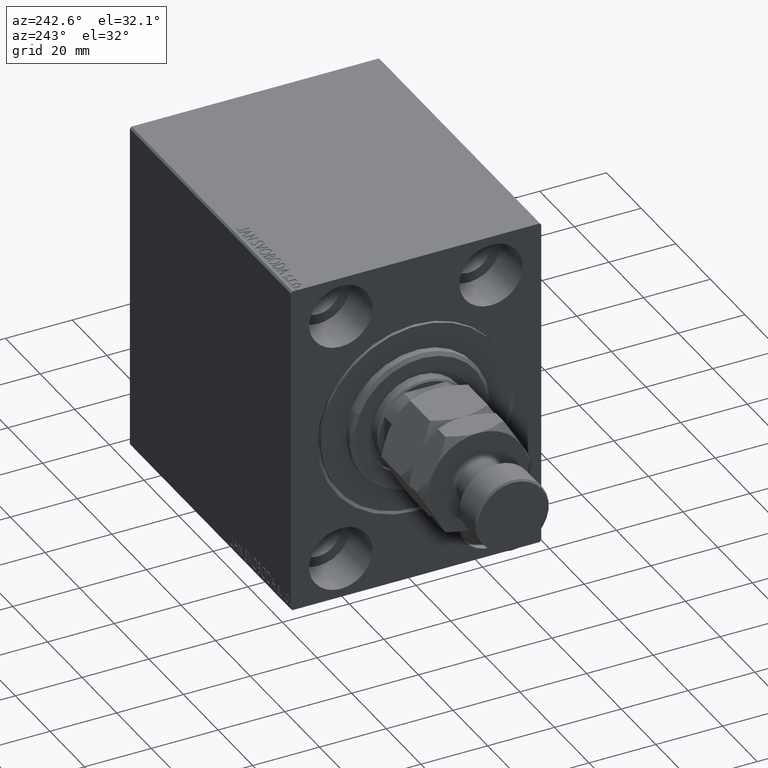
[diagram: clean part render]
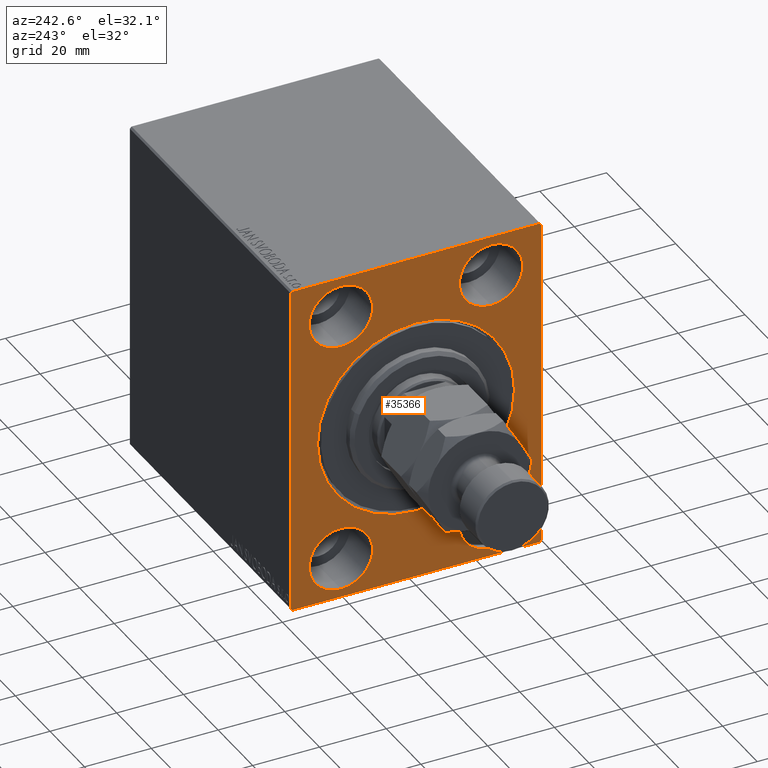
[diagram: same view with one face highlighted and labeled with its STEP entity id]
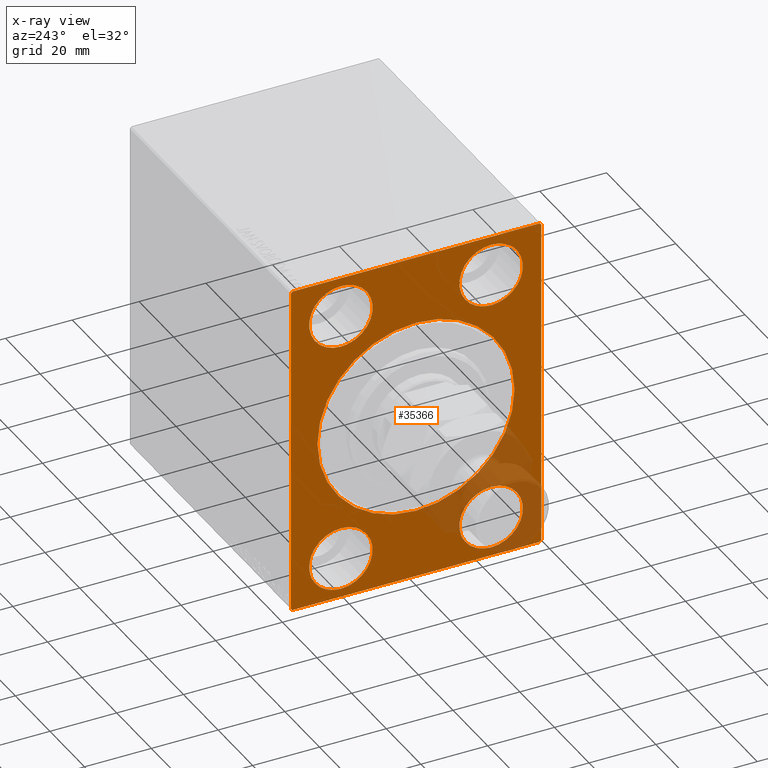
[diagram: x-ray of the same camera — body ghosted, the highlighted face saturated]
A machine part, auxiliary view. The second image highlights one B-rep face of the part: STEP entity #35366.
The next image is the same camera in x-ray: the body ghosted, the highlighted face saturated — about 13% of this face is hidden behind the body in this view.
In plain terms, the highlighted planar face has unit normal (1, 0, 0).
Its self-contained STEP definition (entity closure, byte-faithful):
#129 = ORIENTED_EDGE ( 'NONE', *, *, #8971, .F. ) ;
#409 = EDGE_CURVE ( 'NONE', #41320, #17783, #13076, .T. ) ;
#693 = VERTEX_POINT ( 'NONE', #3735 ) ;
#726 = EDGE_LOOP ( 'NONE', ( #42060, #11375 ) ) ;
#1020 = EDGE_CURVE ( 'NONE', #8788, #36381, #22157, .T. ) ;
#1078 = EDGE_CURVE ( 'NONE', #38572, #693, #28415, .T. ) ;
#1482 = CARTESIAN_POINT ( 'NONE',  ( 0.000000000000000000, -22.49999999999999645, 37.99999999999999289 ) ) ;
#1714 = DIRECTION ( 'NONE',  ( -1.000000000000000000, 0.000000000000000000, 0.000000000000000000 ) ) ;
#1757 = AXIS2_PLACEMENT_3D ( 'NONE', #5021, #19552, #19105 ) ;
#2469 = EDGE_LOOP ( 'NONE', ( #9022, #35100 ) ) ;
#3502 = CARTESIAN_POINT ( 'NONE',  ( 0.000000000000000000, 3.612708057484695548E-15, -29.50000000000002842 ) ) ;
#3686 = VECTOR ( 'NONE', #7411, 1000.000000000000000 ) ;
#3735 = CARTESIAN_POINT ( 'NONE',  ( 0.000000000000000000, 37.00000000000002132, -50.00000000000000000 ) ) ;
#3846 = FACE_BOUND ( 'NONE', #11042, .T. ) ;
#3963 = CIRCLE ( 'NONE', #38662, 9.500000000000001776 ) ;
#4396 = CARTESIAN_POINT ( 'NONE',  ( 0.000000000000000000, 0.000000000000000000, 0.000000000000000000 ) ) ;
#4739 = CARTESIAN_POINT ( 'NONE',  ( 0.000000000000000000, 22.50000000000000355, 47.49999999999999289 ) ) ;
#4958 = DIRECTION ( 'NONE',  ( 0.000000000000000000, 0.000000000000000000, -1.000000000000000000 ) ) ;
#5021 = CARTESIAN_POINT ( 'NONE',  ( 0.000000000000000000, 22.50000000000000355, 37.99999999999999289 ) ) ;
#5477 = DIRECTION ( 'NONE',  ( 0.000000000000000000, 0.000000000000000000, 1.000000000000000000 ) ) ;
#5615 = DIRECTION ( 'NONE',  ( 0.000000000000000000, 0.000000000000000000, 1.000000000000000000 ) ) ;
#5651 = EDGE_CURVE ( 'NONE', #17783, #41320, #28010, .T. ) ;
#6091 = VERTEX_POINT ( 'NONE', #6981 ) ;
#6981 = CARTESIAN_POINT ( 'NONE',  ( 0.000000000000000000, -22.49999999999999645, 28.49999999999998934 ) ) ;
#7021 = CIRCLE ( 'NONE', #13677, 9.500000000000001776 ) ;
#7411 = DIRECTION ( 'NONE',  ( 0.000000000000000000, 1.000000000000000000, 9.251858538542970348E-17 ) ) ;
#7971 = ORIENTED_EDGE ( 'NONE', *, *, #37363, .F. ) ;
#8350 = ORIENTED_EDGE ( 'NONE', *, *, #41703, .T. ) ;
#8408 = AXIS2_PLACEMENT_3D ( 'NONE', #18587, #12105, #4958 ) ;
#8788 = VERTEX_POINT ( 'NONE', #43292 ) ;
#8971 = EDGE_CURVE ( 'NONE', #34063, #693, #43018, .T. ) ;
#9022 = ORIENTED_EDGE ( 'NONE', *, *, #29511, .T. ) ;
#9504 = CARTESIAN_POINT ( 'NONE',  ( 0.000000000000000000, 22.50000000000000355, 37.99999999999999289 ) ) ;
#9813 = DIRECTION ( 'NONE',  ( 0.000000000000000000, 0.000000000000000000, 1.000000000000000000 ) ) ;
#9909 = ORIENTED_EDGE ( 'NONE', *, *, #12942, .F. ) ;
#10250 = VECTOR ( 'NONE', #33769, 1000.000000000000000 ) ;
#10650 = VECTOR ( 'NONE', #41772, 999.9999999999998863 ) ;
#10757 = LINE ( 'NONE', #24877, #37407 ) ;
#10993 = CARTESIAN_POINT ( 'NONE',  ( 0.000000000000000000, 0.000000000000000000, 0.000000000000000000 ) ) ;
#11042 = EDGE_LOOP ( 'NONE', ( #7971, #18069 ) ) ;
#11212 = ORIENTED_EDGE ( 'NONE', *, *, #27428, .F. ) ;
#11375 = ORIENTED_EDGE ( 'NONE', *, *, #5651, .F. ) ;
#11677 = DIRECTION ( 'NONE',  ( 0.000000000000000000, 0.000000000000000000, -1.000000000000000000 ) ) ;
#11692 = CARTESIAN_POINT ( 'NONE',  ( 0.000000000000000000, 22.49999999999999645, -37.99999999999999289 ) ) ;
#12105 = DIRECTION ( 'NONE',  ( 1.000000000000000000, 0.000000000000000000, 0.000000000000000000 ) ) ;
#12732 = VERTEX_POINT ( 'NONE', #27708 ) ;
#12942 = EDGE_CURVE ( 'NONE', #38572, #44271, #13529, .T. ) ;
#13076 = CIRCLE ( 'NONE', #23417, 9.500000000000001776 ) ;
#13326 = CARTESIAN_POINT ( 'NONE',  ( 0.000000000000000000, 37.00000000000000711, 50.00000000000000711 ) ) ;
#13529 = LINE ( 'NONE', #21769, #22919 ) ;
#13677 = AXIS2_PLACEMENT_3D ( 'NONE', #40770, #37303, #5615 ) ;
#13801 = AXIS2_PLACEMENT_3D ( 'NONE', #1482, #1714, #29906 ) ;
#14175 = CARTESIAN_POINT ( 'NONE',  ( 0.000000000000000000, 22.49999999999999645, -37.99999999999999289 ) ) ;
#14686 = FACE_BOUND ( 'NONE', #30766, .T. ) ;
#15020 = CARTESIAN_POINT ( 'NONE',  ( 0.000000000000000000, -37.50000000000000711, -49.50000000000002132 ) ) ;
#15978 = CARTESIAN_POINT ( 'NONE',  ( 0.000000000000000000, 22.50000000000000355, 28.49999999999998934 ) ) ;
#16204 = DIRECTION ( 'NONE',  ( 0.000000000000000000, 0.000000000000000000, 1.000000000000000000 ) ) ;
#16288 = DIRECTION ( 'NONE',  ( 0.000000000000000000, -1.000000000000000000, -1.850371707708594316E-16 ) ) ;
#17206 = CARTESIAN_POINT ( 'NONE',  ( 0.000000000000000000, -36.99999999999997868, 49.99999999999999289 ) ) ;
#17461 = ORIENTED_EDGE ( 'NONE', *, *, #23879, .F. ) ;
#17783 = VERTEX_POINT ( 'NONE', #32640 ) ;
#17931 = FACE_BOUND ( 'NONE', #37610, .T. ) ;
#18001 = DIRECTION ( 'NONE',  ( 0.000000000000000000, -0.7071067811865474617, -0.7071067811865474617 ) ) ;
#18069 = ORIENTED_EDGE ( 'NONE', *, *, #24796, .F. ) ;
#18293 = VERTEX_POINT ( 'NONE', #45644 ) ;
#18587 = CARTESIAN_POINT ( 'NONE',  ( 0.000000000000000000, 0.000000000000000000, 0.000000000000000000 ) ) ;
#19105 = DIRECTION ( 'NONE',  ( 0.000000000000000000, 0.000000000000000000, 1.000000000000000000 ) ) ;
#19394 = ORIENTED_EDGE ( 'NONE', *, *, #1020, .T. ) ;
#19552 = DIRECTION ( 'NONE',  ( -1.000000000000000000, 0.000000000000000000, 0.000000000000000000 ) ) ;
#19633 = LINE ( 'NONE', #22885, #10250 ) ;
#19958 = DIRECTION ( 'NONE',  ( -1.000000000000000000, 0.000000000000000000, 0.000000000000000000 ) ) ;
#20180 = CARTESIAN_POINT ( 'NONE',  ( 0.000000000000000000, -22.49999999999999645, 37.99999999999999289 ) ) ;
#20690 = DIRECTION ( 'NONE',  ( 0.000000000000000000, -1.387778780781445676E-16, 1.000000000000000000 ) ) ;
#21395 = FACE_BOUND ( 'NONE', #726, .T. ) ;
#21769 = CARTESIAN_POINT ( 'NONE',  ( 0.000000000000000000, 37.50000000000000711, -50.00000000000000000 ) ) ;
#21953 = CARTESIAN_POINT ( 'NONE',  ( 0.000000000000000000, 37.50000000000000711, -49.50000000000001421 ) ) ;
#22157 = LINE ( 'NONE', #28638, #33043 ) ;
#22175 = DIRECTION ( 'NONE',  ( 1.000000000000000000, 0.000000000000000000, 0.000000000000000000 ) ) ;
#22528 = EDGE_CURVE ( 'NONE', #26320, #32172, #3963, .T. ) ;
#22560 = CIRCLE ( 'NONE', #33674, 29.50000000000002842 ) ;
#22787 = DIRECTION ( 'NONE',  ( 0.000000000000000000, 0.000000000000000000, 1.000000000000000000 ) ) ;
#22885 = CARTESIAN_POINT ( 'NONE',  ( 0.000000000000000000, -37.00000000000000711, -50.00000000000000711 ) ) ;
#22919 = VECTOR ( 'NONE', #20690, 1000.000000000000000 ) ;
#23417 = AXIS2_PLACEMENT_3D ( 'NONE', #14175, #41500, #9813 ) ;
#23879 = EDGE_CURVE ( 'NONE', #37725, #31025, #29081, .T. ) ;
#24502 = EDGE_CURVE ( 'NONE', #31025, #37725, #31291, .T. ) ;
#24673 = EDGE_CURVE ( 'NONE', #34713, #12732, #37978, .T. ) ;
#24796 = EDGE_CURVE ( 'NONE', #6091, #18293, #32794, .T. ) ;
#24877 = CARTESIAN_POINT ( 'NONE',  ( 0.000000000000000000, 37.49999999999999289, 50.00000000000000711 ) ) ;
#25012 = DIRECTION ( 'NONE',  ( 0.000000000000000000, 0.000000000000000000, -1.000000000000000000 ) ) ;
#25570 = DIRECTION ( 'NONE',  ( 1.000000000000000000, 0.000000000000000000, 0.000000000000000000 ) ) ;
#26058 = EDGE_CURVE ( 'NONE', #26684, #44271, #45242, .T. ) ;
#26320 = VERTEX_POINT ( 'NONE', #33650 ) ;
#26684 = VERTEX_POINT ( 'NONE', #34856 ) ;
#27070 = AXIS2_PLACEMENT_3D ( 'NONE', #10993, #25570, #11677 ) ;
#27273 = CARTESIAN_POINT ( 'NONE',  ( 0.000000000000000000, -37.00000000000000711, -50.00000000000000711 ) ) ;
#27428 = EDGE_CURVE ( 'NONE', #32172, #26320, #7021, .T. ) ;
#27708 = CARTESIAN_POINT ( 'NONE',  ( 0.000000000000000000, 0.000000000000000000, 29.50000000000002842 ) ) ;
#28010 = CIRCLE ( 'NONE', #32438, 9.500000000000001776 ) ;
#28415 = LINE ( 'NONE', #36292, #41904 ) ;
#28638 = CARTESIAN_POINT ( 'NONE',  ( 0.000000000000000000, -37.50000000000000711, 49.49999999999997868 ) ) ;
#29045 = DIRECTION ( 'NONE',  ( -1.000000000000000000, 0.000000000000000000, 0.000000000000000000 ) ) ;
#29081 = CIRCLE ( 'NONE', #37226, 9.500000000000001776 ) ;
#29511 = EDGE_CURVE ( 'NONE', #12732, #34713, #22560, .T. ) ;
#29745 = DIRECTION ( 'NONE',  ( -1.000000000000000000, 0.000000000000000000, 0.000000000000000000 ) ) ;
#29906 = DIRECTION ( 'NONE',  ( 0.000000000000000000, 0.000000000000000000, 1.000000000000000000 ) ) ;
#30074 = ORIENTED_EDGE ( 'NONE', *, *, #35415, .F. ) ;
#30539 = DIRECTION ( 'NONE',  ( -1.000000000000000000, 0.000000000000000000, 0.000000000000000000 ) ) ;
#30766 = EDGE_LOOP ( 'NONE', ( #32192, #17461 ) ) ;
#31025 = VERTEX_POINT ( 'NONE', #4739 ) ;
#31062 = DIRECTION ( 'NONE',  ( 0.000000000000000000, 0.000000000000000000, 1.000000000000000000 ) ) ;
#31133 = ORIENTED_EDGE ( 'NONE', *, *, #22528, .F. ) ;
#31273 = CARTESIAN_POINT ( 'NONE',  ( 0.000000000000000000, -37.50000000000000711, 49.99999999999999289 ) ) ;
#31291 = CIRCLE ( 'NONE', #1757, 9.500000000000001776 ) ;
#32172 = VERTEX_POINT ( 'NONE', #41336 ) ;
#32192 = ORIENTED_EDGE ( 'NONE', *, *, #24502, .F. ) ;
#32438 = AXIS2_PLACEMENT_3D ( 'NONE', #11692, #29045, #22787 ) ;
#32606 = DIRECTION ( 'NONE',  ( 0.000000000000000000, 0.000000000000000000, -1.000000000000000000 ) ) ;
#32640 = CARTESIAN_POINT ( 'NONE',  ( 0.000000000000000000, 22.49999999999999645, -47.49999999999999289 ) ) ;
#32794 = CIRCLE ( 'NONE', #38727, 9.500000000000001776 ) ;
#32860 = EDGE_CURVE ( 'NONE', #8788, #43621, #34074, .T. ) ;
#33043 = VECTOR ( 'NONE', #35367, 999.9999999999998863 ) ;
#33414 = CARTESIAN_POINT ( 'NONE',  ( 0.000000000000000000, 37.49999999999999289, 49.50000000000002842 ) ) ;
#33650 = CARTESIAN_POINT ( 'NONE',  ( 0.000000000000000000, -22.50000000000000711, -28.49999999999998934 ) ) ;
#33674 = AXIS2_PLACEMENT_3D ( 'NONE', #4396, #22175, #32606 ) ;
#33769 = DIRECTION ( 'NONE',  ( -0.000000000000000000, -0.7071067811865573427, 0.7071067811865378028 ) ) ;
#33821 = CARTESIAN_POINT ( 'NONE',  ( 0.000000000000000000, 22.49999999999999645, -28.49999999999998934 ) ) ;
#34063 = VERTEX_POINT ( 'NONE', #27273 ) ;
#34074 = LINE ( 'NONE', #31273, #41135 ) ;
#34227 = ORIENTED_EDGE ( 'NONE', *, *, #1078, .T. ) ;
#34713 = VERTEX_POINT ( 'NONE', #3502 ) ;
#34856 = CARTESIAN_POINT ( 'NONE',  ( 0.000000000000000000, 37.00000000000000711, 50.00000000000000711 ) ) ;
#35100 = ORIENTED_EDGE ( 'NONE', *, *, #24673, .T. ) ;
#35366 = ADVANCED_FACE ( 'NONE', ( #39226, #21395, #3846, #14686, #17931, #43133 ), #43353, .F. ) ;
#35367 = DIRECTION ( 'NONE',  ( -0.000000000000000000, 0.7071067811865574537, 0.7071067811865376918 ) ) ;
#35415 = EDGE_CURVE ( 'NONE', #26684, #36381, #10757, .T. ) ;
#35525 = EDGE_LOOP ( 'NONE', ( #45451, #19394, #30074, #43789, #9909, #34227, #129, #8350 ) ) ;
#36292 = CARTESIAN_POINT ( 'NONE',  ( 0.000000000000000000, 37.50000000000000711, -49.50000000000001421 ) ) ;
#36381 = VERTEX_POINT ( 'NONE', #17206 ) ;
#37226 = AXIS2_PLACEMENT_3D ( 'NONE', #9504, #30539, #16204 ) ;
#37303 = DIRECTION ( 'NONE',  ( -1.000000000000000000, 0.000000000000000000, 0.000000000000000000 ) ) ;
#37363 = EDGE_CURVE ( 'NONE', #18293, #6091, #41906, .T. ) ;
#37407 = VECTOR ( 'NONE', #16288, 1000.000000000000000 ) ;
#37610 = EDGE_LOOP ( 'NONE', ( #31133, #11212 ) ) ;
#37725 = VERTEX_POINT ( 'NONE', #15978 ) ;
#37978 = CIRCLE ( 'NONE', #8408, 29.50000000000002842 ) ;
#38572 = VERTEX_POINT ( 'NONE', #21953 ) ;
#38662 = AXIS2_PLACEMENT_3D ( 'NONE', #40174, #29745, #5477 ) ;
#38727 = AXIS2_PLACEMENT_3D ( 'NONE', #20180, #19958, #31062 ) ;
#39226 = FACE_BOUND ( 'NONE', #2469, .T. ) ;
#40174 = CARTESIAN_POINT ( 'NONE',  ( 0.000000000000000000, -22.50000000000000711, -37.99999999999999289 ) ) ;
#40770 = CARTESIAN_POINT ( 'NONE',  ( 0.000000000000000000, -22.50000000000000711, -37.99999999999999289 ) ) ;
#41135 = VECTOR ( 'NONE', #25012, 1000.000000000000000 ) ;
#41320 = VERTEX_POINT ( 'NONE', #33821 ) ;
#41336 = CARTESIAN_POINT ( 'NONE',  ( 0.000000000000000000, -22.50000000000000711, -47.49999999999999289 ) ) ;
#41500 = DIRECTION ( 'NONE',  ( -1.000000000000000000, 0.000000000000000000, 0.000000000000000000 ) ) ;
#41703 = EDGE_CURVE ( 'NONE', #34063, #43621, #19633, .T. ) ;
#41772 = DIRECTION ( 'NONE',  ( -0.000000000000000000, 0.7071067811865525687, -0.7071067811865425767 ) ) ;
#41904 = VECTOR ( 'NONE', #18001, 1000.000000000000114 ) ;
#41906 = CIRCLE ( 'NONE', #13801, 9.500000000000001776 ) ;
#42060 = ORIENTED_EDGE ( 'NONE', *, *, #409, .F. ) ;
#42111 = CARTESIAN_POINT ( 'NONE',  ( 0.000000000000000000, -37.50000000000000711, -50.00000000000000711 ) ) ;
#43018 = LINE ( 'NONE', #42111, #3686 ) ;
#43133 = FACE_OUTER_BOUND ( 'NONE', #35525, .T. ) ;
#43292 = CARTESIAN_POINT ( 'NONE',  ( 0.000000000000000000, -37.50000000000000711, 49.49999999999997868 ) ) ;
#43353 = PLANE ( 'NONE',  #27070 ) ;
#43621 = VERTEX_POINT ( 'NONE', #15020 ) ;
#43789 = ORIENTED_EDGE ( 'NONE', *, *, #26058, .T. ) ;
#44271 = VERTEX_POINT ( 'NONE', #33414 ) ;
#45242 = LINE ( 'NONE', #13326, #10650 ) ;
#45451 = ORIENTED_EDGE ( 'NONE', *, *, #32860, .F. ) ;
#45644 = CARTESIAN_POINT ( 'NONE',  ( 0.000000000000000000, -22.49999999999999645, 47.49999999999999289 ) ) ;